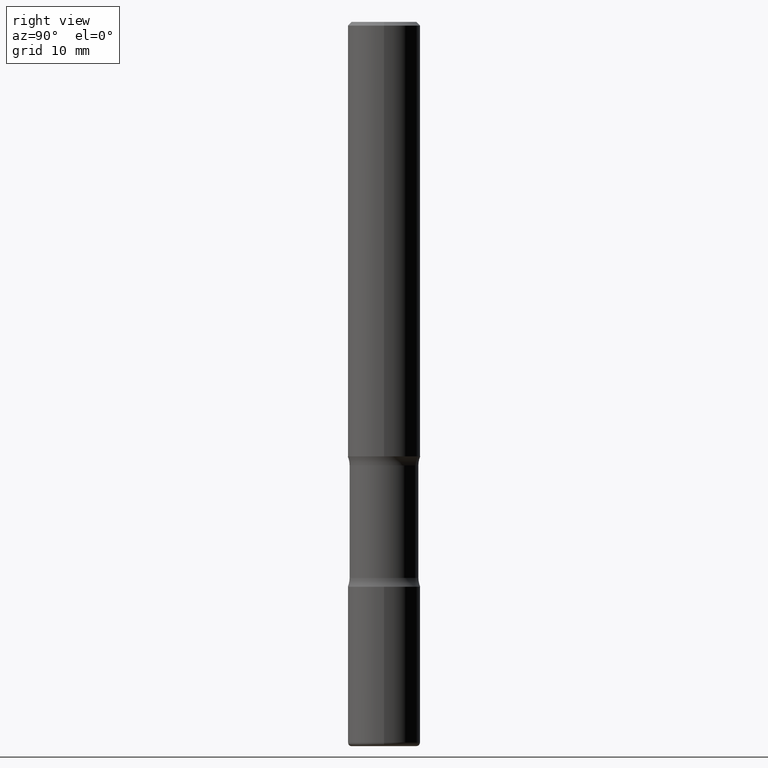
[diagram: clean part render]
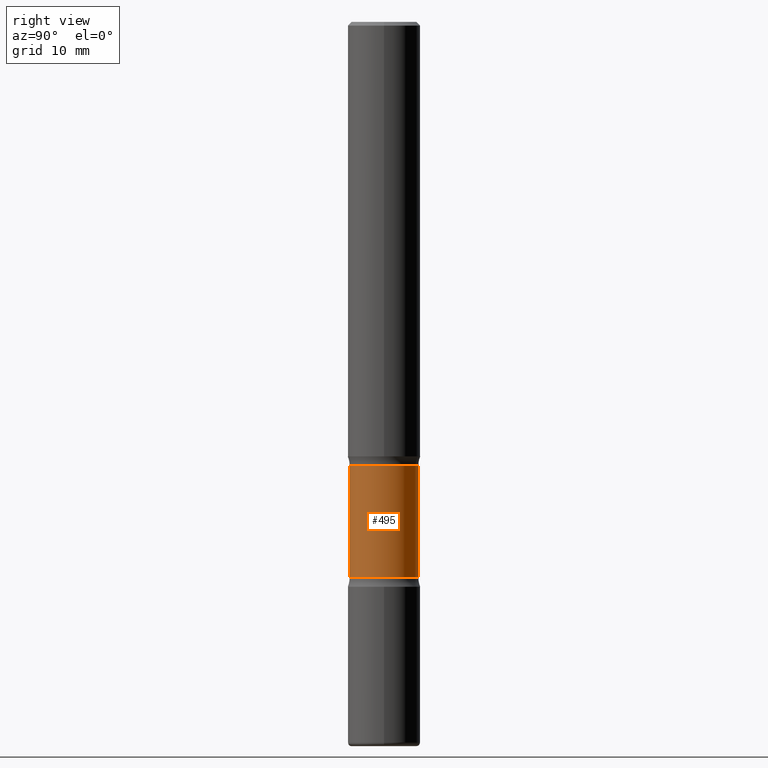
[diagram: same view with one face highlighted and labeled with its STEP entity id]
A machine part, right view. The second image highlights one B-rep face of the part: STEP entity #495.
In plain terms, the highlighted cylindrical surface (edge-blend (fillet) strip) has radius 4.7498 mm, axis along (0, -0, -1).
Its self-contained STEP definition (entity closure, byte-faithful):
#9 = CARTESIAN_POINT ( 'NONE',  ( 9.710227154047748282E-29, -1.362793696358492956E-14, -3.937000000000000277 ) ) ;
#31 = EDGE_CURVE ( 'NONE', #159, #254, #345, .T. ) ;
#32 = CARTESIAN_POINT ( 'NONE',  ( 5.832814217159742143E-29, -8.507337647765213396E-15, -2.410836174808470123 ) ) ;
#33 = DIRECTION ( 'NONE',  ( 2.540626945080028130E-29, -3.355209467880746123E-15, -1.000000000000000000 ) ) ;
#61 = CIRCLE ( 'NONE', #204, 0.1870000000000001106 ) ;
#64 = ORIENTED_EDGE ( 'NONE', *, *, #374, .T. ) ;
#94 = DIRECTION ( 'NONE',  ( 2.540626945080028130E-29, -3.355209467880746123E-15, -1.000000000000000000 ) ) ;
#102 = FACE_OUTER_BOUND ( 'NONE', #143, .T. ) ;
#126 = CARTESIAN_POINT ( 'NONE',  ( 7.386223780689915972E-29, -1.055880548925453445E-14, -3.022263825191530362 ) ) ;
#140 = DIRECTION ( 'NONE',  ( 2.540626945080028130E-29, -3.355209467880745729E-15, -1.000000000000000000 ) ) ;
#143 = EDGE_LOOP ( 'NONE', ( #64, #553, #500, #520 ) ) ;
#149 = CARTESIAN_POINT ( 'NONE',  ( 1.305814020727405957E-15, 0.1869999999999895079, -3.022263825191530806 ) ) ;
#158 = CARTESIAN_POINT ( 'NONE',  ( -1.316701078222244837E-15, -0.1870000000000086315, -2.410836174808469679 ) ) ;
#159 = VERTEX_POINT ( 'NONE', #347 ) ;
#200 = DIRECTION ( 'NONE',  ( 2.540626945080028130E-29, -3.355209467880745729E-15, -1.000000000000000000 ) ) ;
#201 = VERTEX_POINT ( 'NONE', #441 ) ;
#204 = AXIS2_PLACEMENT_3D ( 'NONE', #32, #33, #377 ) ;
#254 = VERTEX_POINT ( 'NONE', #149 ) ;
#342 = DIRECTION ( 'NONE',  ( 6.982962677686266711E-15, 1.000000000000000000, -2.921762560068729806E-15 ) ) ;
#345 = LINE ( 'NONE', #348, #356 ) ;
#347 = CARTESIAN_POINT ( 'NONE',  ( 1.305814020727390771E-15, 0.1869999999999916174, -2.410836174808470567 ) ) ;
#348 = CARTESIAN_POINT ( 'NONE',  ( 1.305814020727429425E-15, 0.1869999999999864548, -3.937000000000000721 ) ) ;
#356 = VECTOR ( 'NONE', #140, 39.37007874015748143 ) ;
#374 = EDGE_CURVE ( 'NONE', #159, #474, #61, .T. ) ;
#377 = DIRECTION ( 'NONE',  ( 6.982962677686266711E-15, 1.000000000000000000, -2.921762560068729017E-15 ) ) ;
#432 = DIRECTION ( 'NONE',  ( 6.982962677686266711E-15, 1.000000000000000000, -2.921762560068729411E-15 ) ) ;
#434 = DIRECTION ( 'NONE',  ( 2.540626945080028130E-29, -3.355209467880746123E-15, -1.000000000000000000 ) ) ;
#440 = VECTOR ( 'NONE', #200, 39.37007874015748143 ) ;
#441 = CARTESIAN_POINT ( 'NONE',  ( -1.316701078222226890E-15, -0.1870000000000106022, -3.022263825191529918 ) ) ;
#467 = LINE ( 'NONE', #475, #440 ) ;
#469 = EDGE_CURVE ( 'NONE', #474, #201, #467, .T. ) ;
#472 = AXIS2_PLACEMENT_3D ( 'NONE', #9, #434, #432 ) ;
#474 = VERTEX_POINT ( 'NONE', #158 ) ;
#475 = CARTESIAN_POINT ( 'NONE',  ( -1.282913125583179628E-15, -0.1870000000000137108, -3.936999999999999389 ) ) ;
#482 = CYLINDRICAL_SURFACE ( 'NONE', #472, 0.1870000000000000828 ) ;
#486 = CIRCLE ( 'NONE', #505, 0.1870000000000000551 ) ;
#495 = ADVANCED_FACE ( 'NONE', ( #102 ), #482, .T. ) ;
#500 = ORIENTED_EDGE ( 'NONE', *, *, #512, .F. ) ;
#505 = AXIS2_PLACEMENT_3D ( 'NONE', #126, #94, #342 ) ;
#512 = EDGE_CURVE ( 'NONE', #254, #201, #486, .T. ) ;
#520 = ORIENTED_EDGE ( 'NONE', *, *, #31, .F. ) ;
#553 = ORIENTED_EDGE ( 'NONE', *, *, #469, .T. ) ;